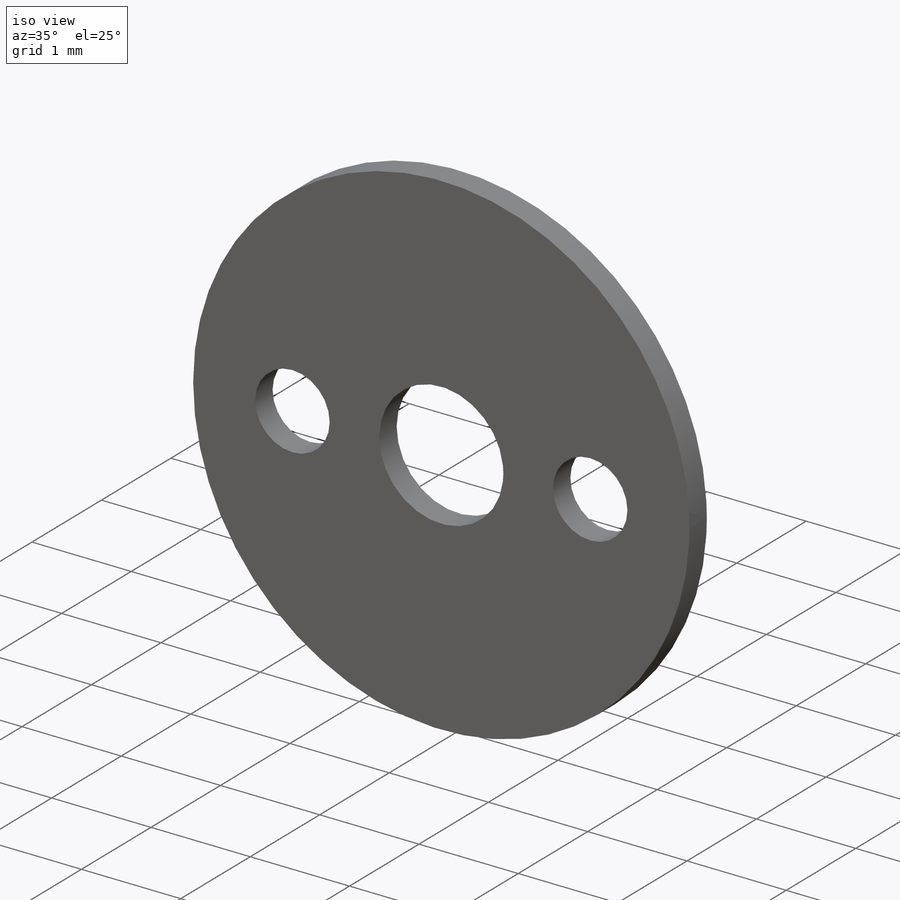
[diagram: iso view]
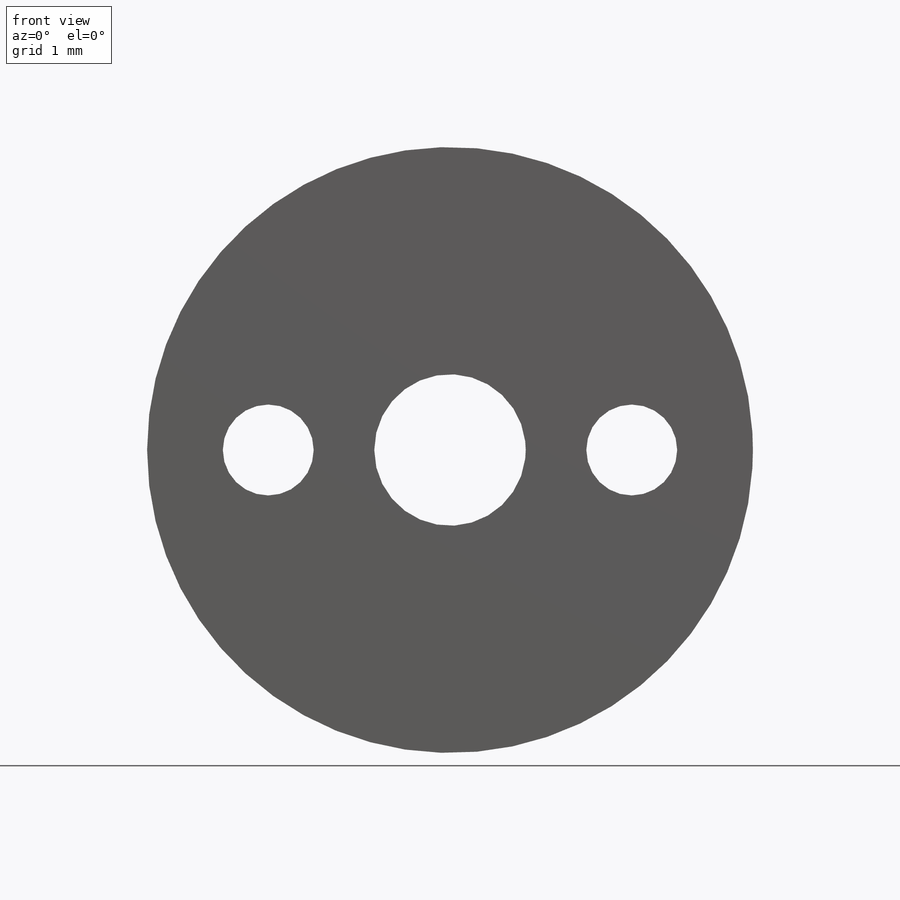
[diagram: front view]
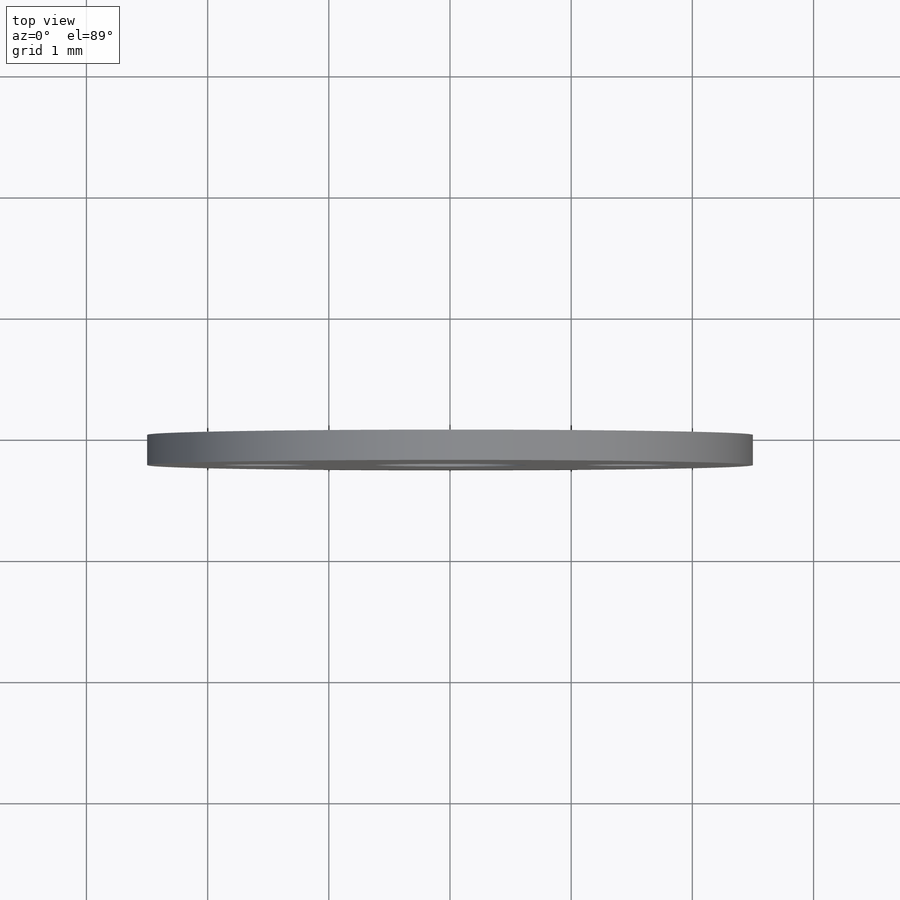
[diagram: top view]
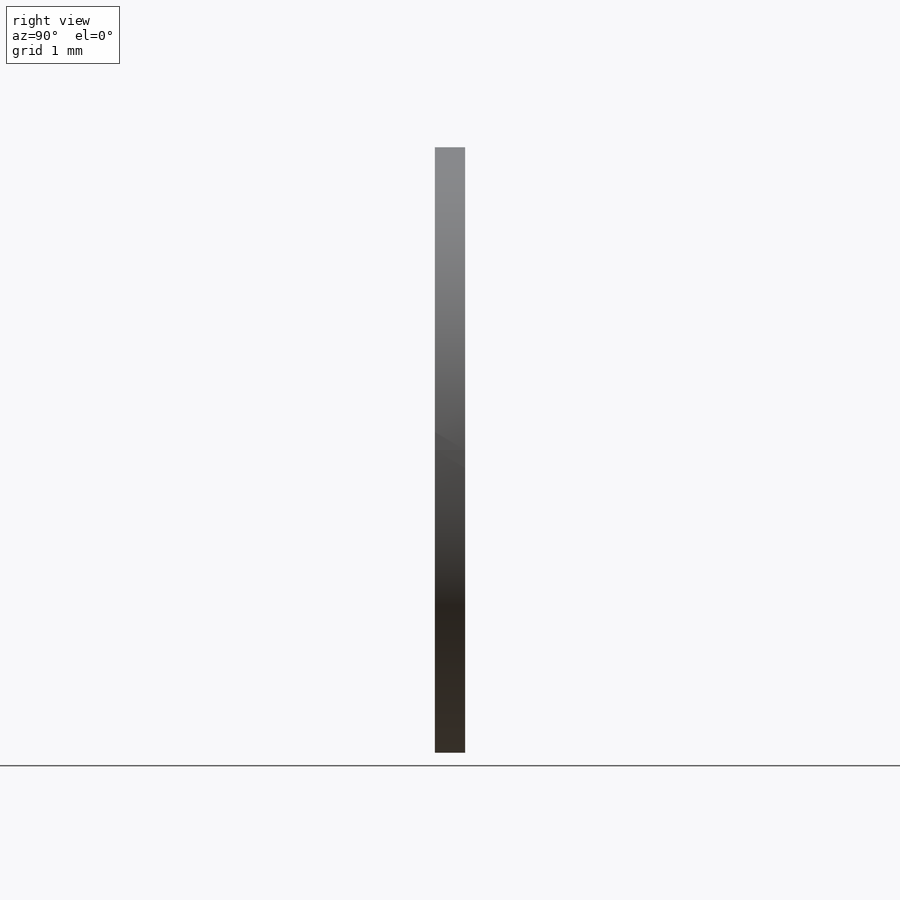
[diagram: right view]
SOLIDWORKS PART (.sldprt)
format: sldprt  version: not decoded by parser v0  size: 233,472 bytes
history: native  units: mm
features: sketch x3, thread x2, material x1, extrude x1, hole x1 (+11 scaffold rows collapsed)
feature tree (19):
  scaffold x11  (default folders/planes/origin — collapsed)
  material  "Material <sin especificar>"
  sketch  "Croquis1"  dims[c1.D1=5.0mm c1.D2=1.25mm c1.D3=0.5mm c1.D4=0.5mm c1.D5=1.4mm c1.D6=1.4mm c1.D7=2.8mm c2.D5=2.8mm]
  extrude  "Saliente-Extruir1"  Depth=0.25mm
  hole  "Taladro roscado M1x0.251"  Depth=0.25mm  [1 undecoded]
  sketch  "Croquis3"  dims[D1=3.0mm D2=1.5mm]
  sketch  "Croquis2"  dims[hole-wizard template sketch: 61 standard entries collapsed; hole parameters above]
  thread  "Rosca de taladro1"  Diameter=1mm  [1 undecoded]
  thread  "Rosca de taladro2"  Diameter=1mm  [1 undecoded]
decode coverage: 7 of 7 modeling features carry decoded parameters
note: ~ marks probable driven/reference dimensions
note: 3 parameter values undecoded
note: suppression state not decoded; provenance and decode notes live in map.json
